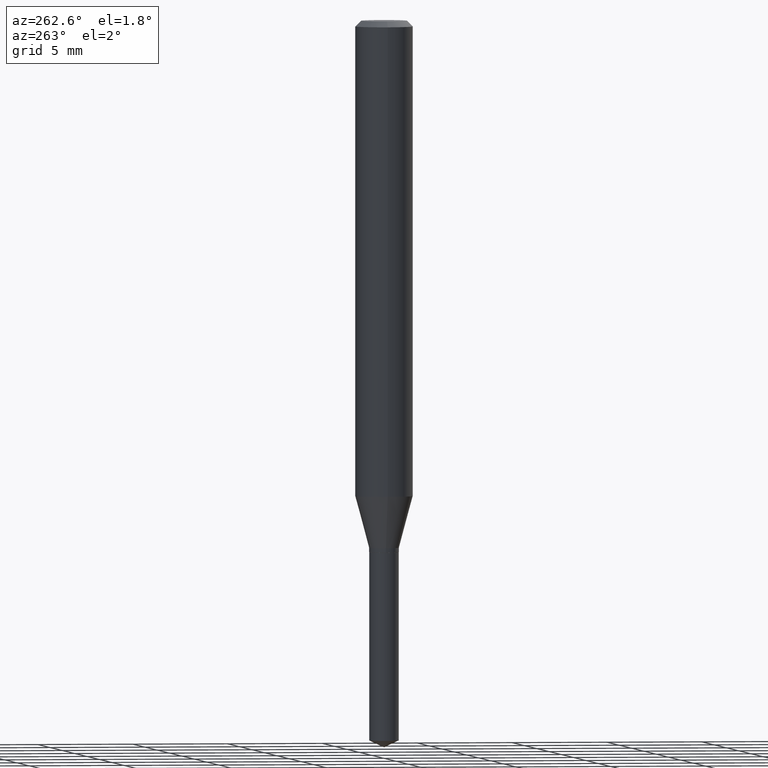
[diagram: clean part render]
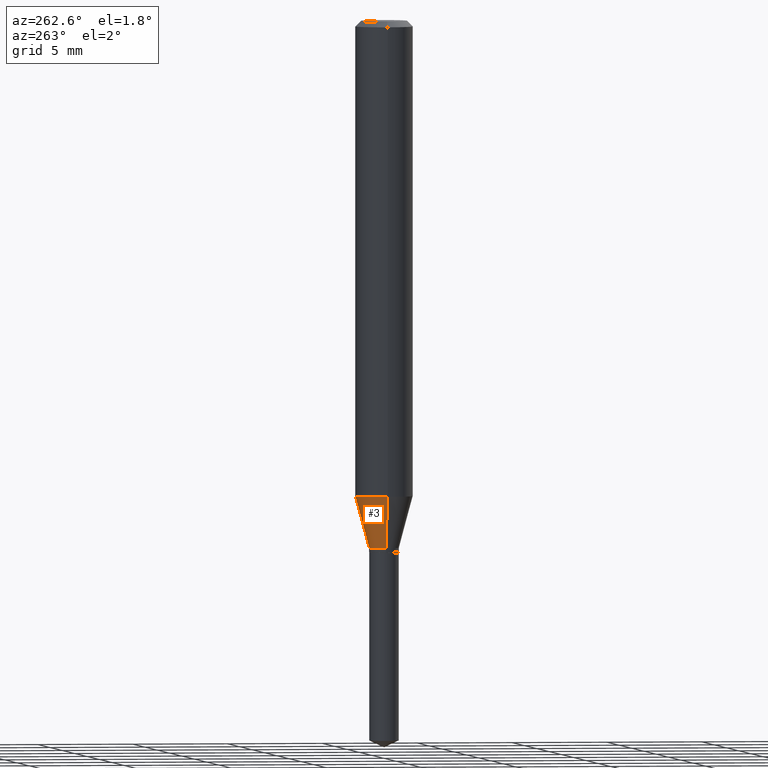
[diagram: same view with one face highlighted and labeled with its STEP entity id]
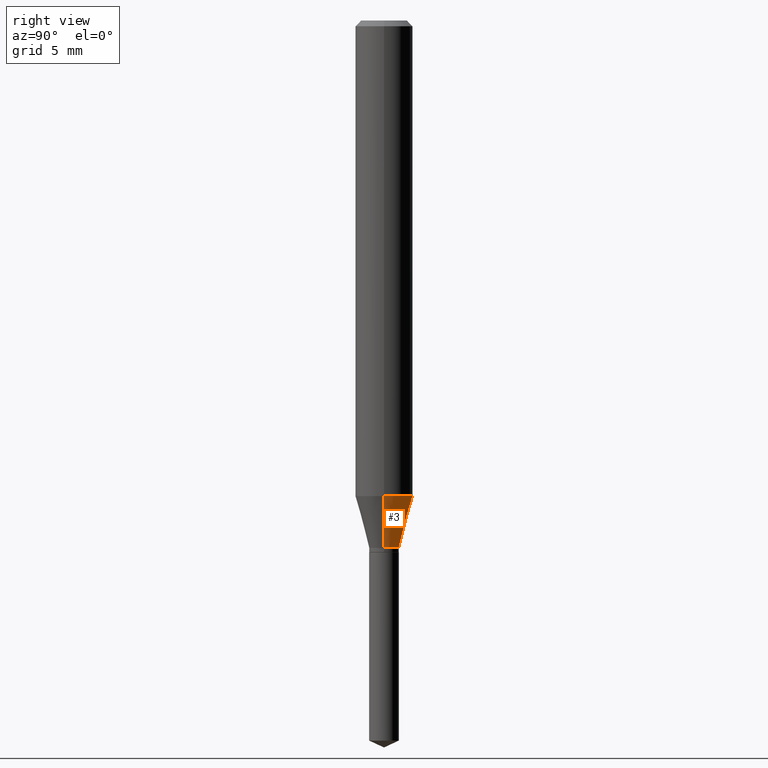
[diagram: same view with one face highlighted and labeled with its STEP entity id]
A machine part, auxiliary view. The second image highlights one B-rep face of the part: STEP entity #3.
A second angle (right view) of the same face is appended — the face is thin or edge-on in the first view.
In plain terms, the highlighted conical surface has half-angle 15 deg.
Its self-contained STEP definition (entity closure, byte-faithful):
#3 = ADVANCED_FACE ( 'NONE', ( #307 ), #194, .T. ) ;
#43 = EDGE_LOOP ( 'NONE', ( #163, #350, #84, #214 ) ) ;
#59 = DIRECTION ( 'NONE',  ( 1.000000000000000000, -6.982962677686272233E-15, 0.000000000000000000 ) ) ;
#60 = VERTEX_POINT ( 'NONE', #399 ) ;
#74 = EDGE_CURVE ( 'NONE', #60, #161, #325, .T. ) ;
#76 = CARTESIAN_POINT ( 'NONE',  ( -0.05905000000000011628, -2.997711698410737591E-15, -0.9787499494439081404 ) ) ;
#81 = DIRECTION ( 'NONE',  ( 1.000000000000000000, -6.982962677686272233E-15, 0.000000000000000000 ) ) ;
#84 = ORIENTED_EDGE ( 'NONE', *, *, #369, .F. ) ;
#96 = DIRECTION ( 'NONE',  ( 0.2588190451025212391, 1.565188264969622362E-15, 0.9659258262890679791 ) ) ;
#105 = DIRECTION ( 'NONE',  ( -0.2588190451025212391, 5.211531920934549464E-15, 0.9659258262890679791 ) ) ;
#136 = DIRECTION ( 'NONE',  ( 1.000000000000000000, -6.982962677686266711E-15, 0.000000000000000000 ) ) ;
#137 = CARTESIAN_POINT ( 'NONE',  ( -0.03049999999999998546, -3.587777106463602651E-15, -1.085299999999999931 ) ) ;
#161 = VERTEX_POINT ( 'NONE', #137 ) ;
#163 = ORIENTED_EDGE ( 'NONE', *, *, #74, .T. ) ;
#194 = CONICAL_SURFACE ( 'NONE', #223, 0.03049999999999998546, 0.2617993877991499629 ) ;
#200 = AXIS2_PLACEMENT_3D ( 'NONE', #319, #239, #59 ) ;
#201 = EDGE_CURVE ( 'NONE', #161, #382, #367, .T. ) ;
#214 = ORIENTED_EDGE ( 'NONE', *, *, #339, .F. ) ;
#223 = AXIS2_PLACEMENT_3D ( 'NONE', #468, #416, #81 ) ;
#239 = DIRECTION ( 'NONE',  ( -2.445468806185136597E-29, 3.491481338843145583E-15, 1.000000000000000000 ) ) ;
#296 = CIRCLE ( 'NONE', #342, 0.05905000000000011628 ) ;
#307 = FACE_OUTER_BOUND ( 'NONE', #43, .T. ) ;
#318 = CARTESIAN_POINT ( 'NONE',  ( 2.393502470420357058E-29, -3.417287183877077478E-15, -0.9787499494439081404 ) ) ;
#319 = CARTESIAN_POINT ( 'NONE',  ( 2.654067295352728283E-29, -3.789304697046465530E-15, -1.085299999999999931 ) ) ;
#323 = CARTESIAN_POINT ( 'NONE',  ( 0.03049999999999998546, -4.002285058715896854E-15, -1.085299999999999931 ) ) ;
#325 = CIRCLE ( 'NONE', #200, 0.03049999999999998546 ) ;
#330 = CARTESIAN_POINT ( 'NONE',  ( 0.05905000000000011628, -3.829631129994452398E-15, -0.9787499494439081404 ) ) ;
#339 = EDGE_CURVE ( 'NONE', #60, #384, #400, .T. ) ;
#342 = AXIS2_PLACEMENT_3D ( 'NONE', #318, #482, #136 ) ;
#350 = ORIENTED_EDGE ( 'NONE', *, *, #201, .T. ) ;
#367 = LINE ( 'NONE', #446, #452 ) ;
#369 = EDGE_CURVE ( 'NONE', #384, #382, #296, .T. ) ;
#382 = VERTEX_POINT ( 'NONE', #76 ) ;
#384 = VERTEX_POINT ( 'NONE', #330 ) ;
#399 = CARTESIAN_POINT ( 'NONE',  ( 0.03049999999999998546, -4.002285058715896854E-15, -1.085299999999999931 ) ) ;
#400 = LINE ( 'NONE', #323, #415 ) ;
#415 = VECTOR ( 'NONE', #96, 39.37007874015748854 ) ;
#416 = DIRECTION ( 'NONE',  ( -2.445468806185136597E-29, 3.491481338843145583E-15, 1.000000000000000000 ) ) ;
#446 = CARTESIAN_POINT ( 'NONE',  ( -0.03049999999999998546, -3.572589162639635175E-15, -1.085299999999999931 ) ) ;
#452 = VECTOR ( 'NONE', #105, 39.37007874015748854 ) ;
#468 = CARTESIAN_POINT ( 'NONE',  ( 2.654067295352728283E-29, -3.789304697046465530E-15, -1.085299999999999931 ) ) ;
#482 = DIRECTION ( 'NONE',  ( -2.445468806185136597E-29, 3.491481338843145583E-15, 1.000000000000000000 ) ) ;